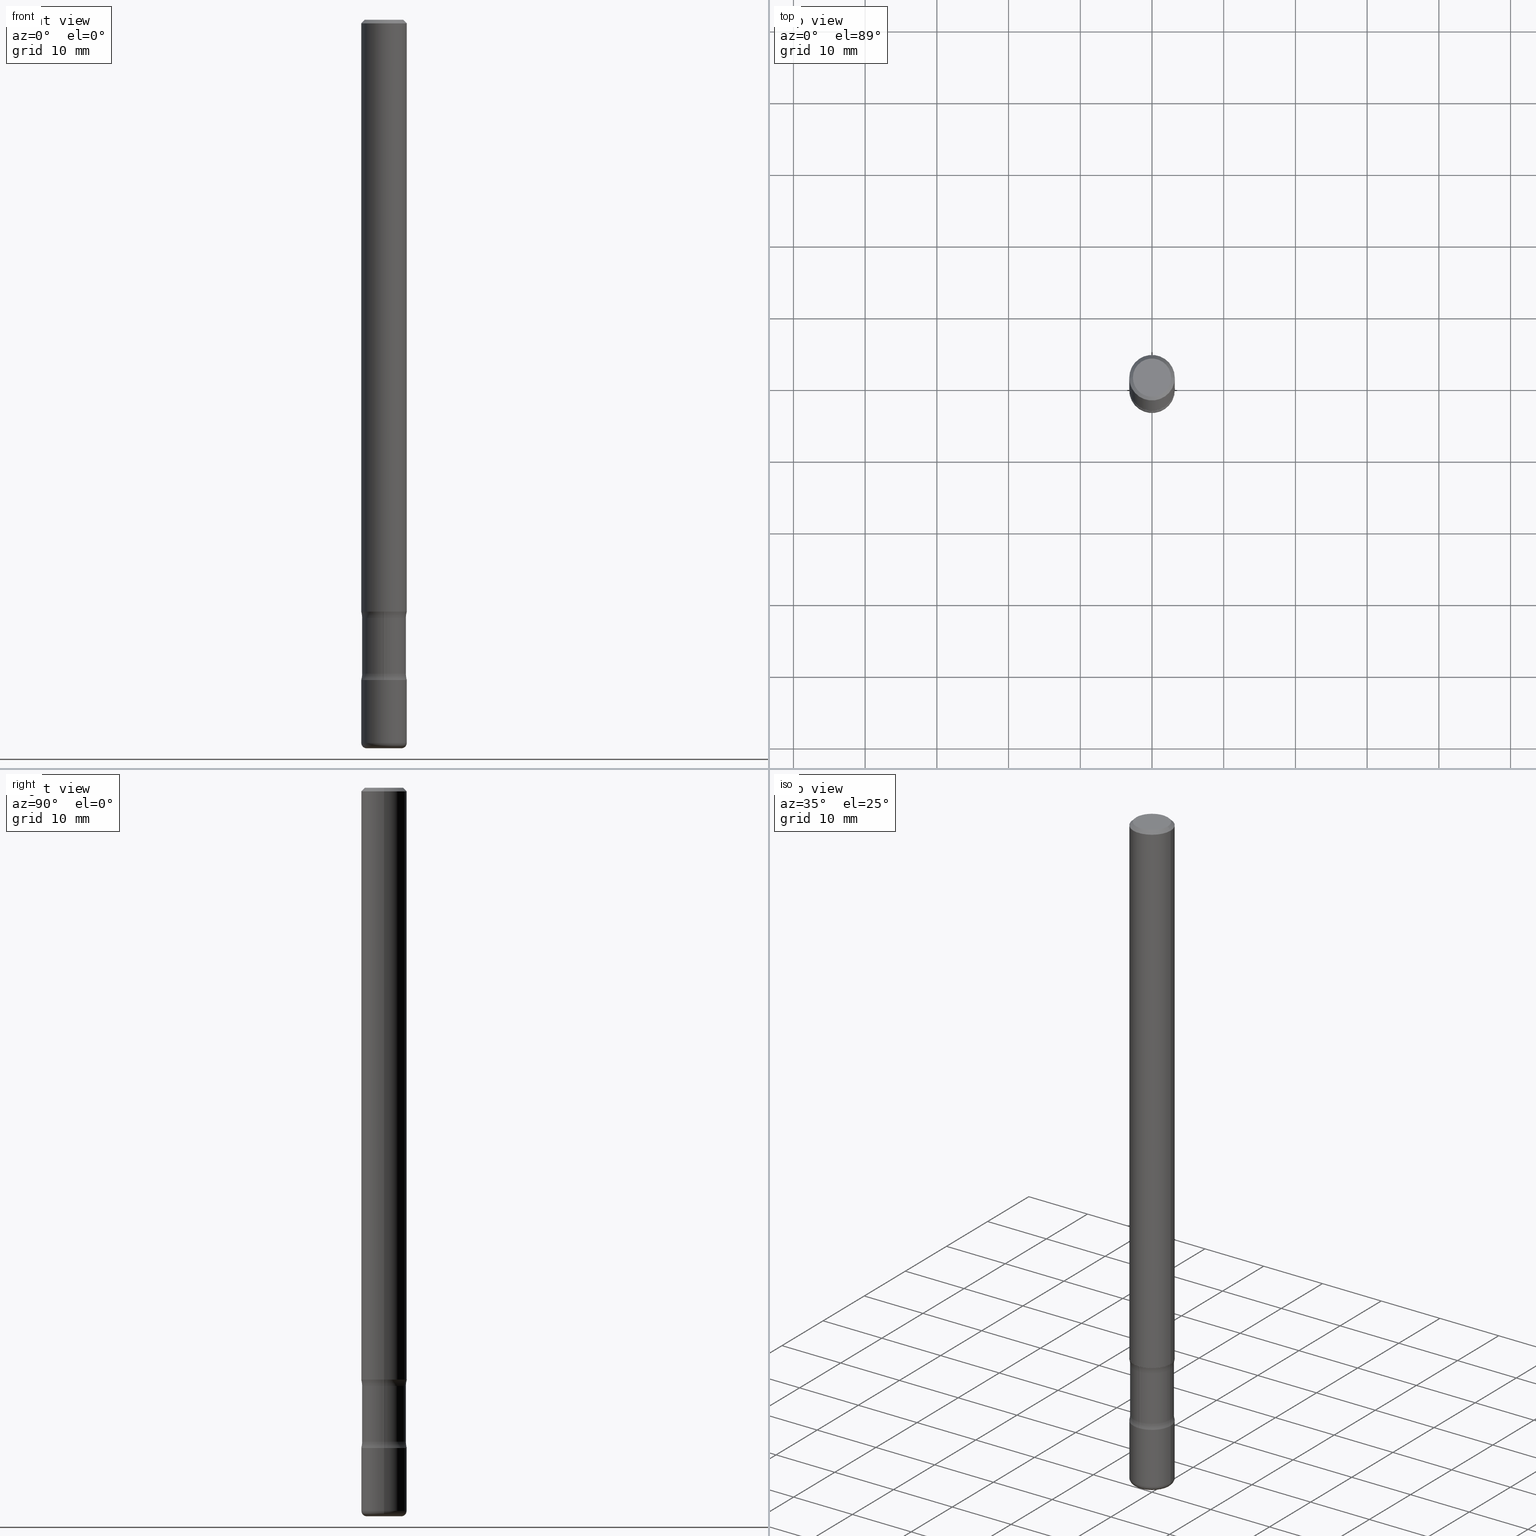
[diagram: canonical four-view strip — front | top / right | iso, engineering-drawing reading convention]
A machine part, canonical four-view strip (front | top / right | iso — engineering-drawing reading convention). The complete STEP part file that produces these views, byte-faithful:
ISO-10303-21;
HEADER;
FILE_DESCRIPTION (( 'STEP AP203' ),
    '1' );
FILE_NAME ('32754.STEP',
    '2023-03-11T07:00:12',
    ( '' ),
    ( '' ),
    'SwSTEP 2.0',
    'SolidWorks 2022',
    '' );
FILE_SCHEMA (( 'CONFIG_CONTROL_DESIGN' ));
ENDSEC;

DATA;
#1 = CARTESIAN_POINT ( 'NONE',  ( 0.1200000000000000927, -1.230747171942208294E-14, -3.284999999999999698 ) ) ;
#2 = ORIENTED_EDGE ( 'NONE', *, *, #463, .F. ) ;
#3 = CARTESIAN_POINT ( 'NONE',  ( -0.1249999999999996808, 8.030407079339180685E-16, -0.02000000000000002470 ) ) ;
#4 = CARTESIAN_POINT ( 'NONE',  ( -2.199483274483268493E-29, -2.850133821655910914E-14, -3.624999999999999556 ) ) ;
#5 = VERTEX_POINT ( 'NONE', #103 ) ;
#6 = DIRECTION ( 'NONE',  ( -2.438088387897960049E-29, 3.491481338843145188E-15, 1.000000000000000000 ) ) ;
#7 = CONICAL_SURFACE ( 'NONE', #601, 0.1249999999999996808, 0.7853981633974477239 ) ;
#8 = AXIS2_PLACEMENT_3D ( 'NONE', #503, #74, #638 ) ;
#9 = ADVANCED_FACE ( 'NONE', ( #483 ), #291, .F. ) ;
#10 = DIRECTION ( 'NONE',  ( 7.105427357601001859E-15, 1.000000000000000000, -3.491481338843145583E-15 ) ) ;
#11 = DIRECTION ( 'NONE',  ( 2.445468806185136597E-29, -3.491481338843145583E-15, -1.000000000000000000 ) ) ;
#12 = UNCERTAINTY_MEASURE_WITH_UNIT (LENGTH_MEASURE( 1.000000000000000082E-05 ), #261, 'distance_accuracy_value', 'NONE');
#13 = EDGE_LOOP ( 'NONE', ( #497, #394, #105, #78 ) ) ;
#14 = AXIS2_PLACEMENT_3D ( 'NONE', #727, #430, #363 ) ;
#15 = CIRCLE ( 'NONE', #209, 0.1250000000000000000 ) ;
#16 = CIRCLE ( 'NONE', #364, 0.1200000000000000927 ) ;
#17 = VERTEX_POINT ( 'NONE', #83 ) ;
#18 = DIRECTION ( 'NONE',  ( 1.000000000000000000, -6.982962677686261189E-15, 0.000000000000000000 ) ) ;
#19 = ORIENTED_EDGE ( 'NONE', *, *, #221, .F. ) ;
#20 = APPROVAL ( #719, 'UNSPECIFIED' ) ;
#21 = ADVANCED_FACE ( 'NONE', ( #214 ), #343, .F. ) ;
#22 = DIRECTION ( 'NONE',  ( 1.000000000000000000, -6.860497997771530774E-15, 4.840754334505379215E-29 ) ) ;
#23 = FACE_OUTER_BOUND ( 'NONE', #521, .T. ) ;
#24 = CLOSED_SHELL ( 'NONE', ( #131, #204, #679, #763, #644, #141, #357, #179 ) ) ;
#25 = AXIS2_PLACEMENT_3D ( 'NONE', #229, #289, #427 ) ;
#26 = DIRECTION ( 'NONE',  ( 2.442928833827242827E-29, -3.495118723825897803E-15, -1.000000000000000000 ) ) ;
#27 = FACE_OUTER_BOUND ( 'NONE', #174, .T. ) ;
#28 = TOROIDAL_SURFACE ( 'NONE', #397, 0.2450000000000000788, 0.1249999999999999584 ) ;
#29 = PLANE ( 'NONE',  #700 ) ;
#30 = FACE_OUTER_BOUND ( 'NONE', #411, .T. ) ;
#31 = CC_DESIGN_DATE_AND_TIME_ASSIGNMENT ( #367, #37, ( #64 ) ) ;
#32 = PERSON_AND_ORGANIZATION ( #461, #447 ) ;
#33 = DIRECTION ( 'NONE',  ( -2.445468806185136597E-29, 3.491481338843145583E-15, 1.000000000000000000 ) ) ;
#34 = DIRECTION ( 'NONE',  ( 1.000000000000000000, -6.982962677686262766E-15, 0.000000000000000000 ) ) ;
#35 = ORIENTED_EDGE ( 'NONE', *, *, #324, .F. ) ;
#36 = MANIFOLD_SOLID_BREP ( 'Body-Move/Copy2[1]', #600 ) ;
#37 = DATE_TIME_ROLE ( 'creation_date' ) ;
#38 = DIRECTION ( 'NONE',  ( -2.445468806185136877E-29, 3.491481338843145188E-15, 1.000000000000000000 ) ) ;
#39 = CARTESIAN_POINT ( 'NONE',  ( -8.232597597324865525E-16, -0.1200000000000140538, -3.997119036516930013 ) ) ;
#40 = MANIFOLD_SOLID_BREP ( 'Body-Move/Copy2[3]', #24 ) ;
#41 = CIRCLE ( 'NONE', #655, 0.1250000000000000000 ) ;
#42 = ORIENTED_EDGE ( 'NONE', *, *, #316, .F. ) ;
#43 = CIRCLE ( 'NONE', #776, 0.09499999999999998723 ) ;
#44 = CARTESIAN_POINT ( 'NONE',  ( 0.1250000000000000000, -8.728703347107833388E-16, 6.095220969744919741E-30 ) ) ;
#45 = ORIENTED_EDGE ( 'NONE', *, *, #524, .T. ) ;
#46 = PERSON_AND_ORGANIZATION_ROLE ( 'classification_officer' ) ;
#47 = CC_DESIGN_PERSON_AND_ORGANIZATION_ASSIGNMENT ( #234, #352, ( #408 ) ) ;
#48 = CARTESIAN_POINT ( 'NONE',  ( -0.1249999999999998335, 8.881784197001240490E-16, -6.148668862818623819E-30 ) ) ;
#49 = DIRECTION ( 'NONE',  ( -2.445468806185136597E-29, 3.491481338843145583E-15, 1.000000000000000000 ) ) ;
#50 = DIRECTION ( 'NONE',  ( -2.445468806185136597E-29, 3.491481338843145583E-15, 1.000000000000000000 ) ) ;
#51 = ORIENTED_EDGE ( 'NONE', *, *, #340, .F. ) ;
#52 = DIRECTION ( 'NONE',  ( 2.438088387897960049E-29, -3.491481338843145188E-15, -1.000000000000000000 ) ) ;
#53 = PLANE ( 'NONE',  #334 ) ;
#54 = ORIENTED_EDGE ( 'NONE', *, *, #276, .F. ) ;
#55 = CARTESIAN_POINT ( 'NONE',  ( -1.680822009453945353E-15, -0.2450000000000115696, -3.284999999999998366 ) ) ;
#56 = ORIENTED_EDGE ( 'NONE', *, *, #259, .T. ) ;
#57 = CARTESIAN_POINT ( 'NONE',  ( 8.379555213224503959E-16, 0.1199999999999861594, -3.997119036516931345 ) ) ;
#58 = ORIENTED_EDGE ( 'NONE', *, *, #643, .F. ) ;
#59 = AXIS2_PLACEMENT_3D ( 'NONE', #726, #241, #112 ) ;
#60 = ORIENTED_EDGE ( 'NONE', *, *, #392, .F. ) ;
#61 = AXIS2_PLACEMENT_3D ( 'NONE', #286, #542, #714 ) ;
#62 = CARTESIAN_POINT ( 'NONE',  ( 0.000000000000000000, 0.000000000000000000, 0.000000000000000000 ) ) ;
#63 = CARTESIAN_POINT ( 'NONE',  ( 0.08249999999999986511, -1.453191644018873135E-14, -3.999999999999999556 ) ) ;
#64 = PRODUCT_DEFINITION ( 'UNKNOWN', '', #408, #84 ) ;
#65 = ORIENTED_EDGE ( 'NONE', *, *, #637, .F. ) ;
#66 = EDGE_CURVE ( 'NONE', #620, #606, #549, .T. ) ;
#67 = CARTESIAN_POINT ( 'NONE',  ( -8.575622497213526984E-16, -0.1250000000000126288, -3.624999999999999112 ) ) ;
#68 = DIRECTION ( 'NONE',  ( 1.000000000000000000, -6.982962677686264344E-15, 4.883557194083112340E-29 ) ) ;
#69 = CARTESIAN_POINT ( 'NONE',  ( -8.575622497213618690E-16, -0.1250000000000113243, -3.249999999999999556 ) ) ;
#70 = VERTEX_POINT ( 'NONE', #597 ) ;
#71 = CYLINDRICAL_SURFACE ( 'NONE', #164, 0.1249999999999998335 ) ;
#72 = CARTESIAN_POINT ( 'NONE',  ( 8.779233014204640876E-29, -1.253441800644689261E-14, -3.590000000000000302 ) ) ;
#73 = CLOSED_SHELL ( 'NONE', ( #350, #736, #271, #9, #77, #756, #212, #671 ) ) ;
#74 = DIRECTION ( 'NONE',  ( -2.438088387897960049E-29, 3.491481338843145188E-15, 1.000000000000000000 ) ) ;
#75 = CIRCLE ( 'NONE', #538, 0.1250000000000000000 ) ;
#76 = AXIS2_PLACEMENT_3D ( 'NONE', #92, #603, #605 ) ;
#77 = ADVANCED_FACE ( 'NONE', ( #150 ), #658, .F. ) ;
#78 = ORIENTED_EDGE ( 'NONE', *, *, #66, .T. ) ;
#79 = TOROIDAL_SURFACE ( 'NONE', #465, 0.2450000000000000788, 0.1249999999999999584 ) ;
#80 = CIRCLE ( 'NONE', #551, 0.1250000000000000000 ) ;
#81 = CARTESIAN_POINT ( 'NONE',  ( 9.781875224740545266E-29, -1.396592535537258075E-14, -3.999999999999999556 ) ) ;
#82 = VECTOR ( 'NONE', #443, 39.37007874015748143 ) ;
#83 = CARTESIAN_POINT ( 'NONE',  ( 8.728703347108718885E-16, 0.1249999999999873296, -3.625000000000000444 ) ) ;
#84 = DESIGN_CONTEXT ( 'detailed design', #704, 'design' ) ;
#85 = EDGE_CURVE ( 'NONE', #636, #233, #98, .T. ) ;
#86 = VERTEX_POINT ( 'NONE', #777 ) ;
#87 = EDGE_CURVE ( 'NONE', #784, #730, #475, .T. ) ;
#88 = CARTESIAN_POINT ( 'NONE',  ( -0.1200000000000001205, -1.172510407857052449E-14, -3.590000000000000302 ) ) ;
#89 = DIRECTION ( 'NONE',  ( 6.982962677686265922E-15, 1.000000000000000000, -3.495118723825897803E-15 ) ) ;
#90 = EDGE_CURVE ( 'NONE', #190, #730, #798, .T. ) ;
#91 = DIRECTION ( 'NONE',  ( -2.445468806185136597E-29, 3.491481338843145583E-15, 1.000000000000000000 ) ) ;
#92 = CARTESIAN_POINT ( 'NONE',  ( 8.779233014204640876E-29, -1.253441800644689261E-14, -3.590000000000000302 ) ) ;
#93 = CARTESIAN_POINT ( 'NONE',  ( -1.043851414335219820E-46, 1.490343170380447200E-32, 4.268512490100411279E-18 ) ) ;
#94 = CARTESIAN_POINT ( 'NONE',  ( 8.779321913237167628E-29, -1.253429069797249521E-14, -3.590000000000000302 ) ) ;
#95 = AXIS2_PLACEMENT_3D ( 'NONE', #618, #494, #189 ) ;
#96 = EDGE_CURVE ( 'NONE', #636, #751, #354, .T. ) ;
#97 = CIRCLE ( 'NONE', #765, 0.1249999999999999584 ) ;
#98 = LINE ( 'NONE', #280, #699 ) ;
#99 = TOROIDAL_SURFACE ( 'NONE', #766, 0.09499999999999998723, 0.02999999999999998848 ) ;
#100 = ORIENTED_EDGE ( 'NONE', *, *, #533, .F. ) ;
#101 = DIRECTION ( 'NONE',  ( -1.000000000000000000, 6.982962677686266711E-15, 0.000000000000000000 ) ) ;
#102 = DIRECTION ( 'NONE',  ( 1.000000000000000000, -6.982962677686265922E-15, 4.876176775795935793E-29 ) ) ;
#103 = CARTESIAN_POINT ( 'NONE',  ( -0.1049999999999996630, 7.681258945454869124E-16, 4.268512490095161194E-18 ) ) ;
#104 = EDGE_CURVE ( 'NONE', #17, #451, #278, .T. ) ;
#105 = ORIENTED_EDGE ( 'NONE', *, *, #643, .T. ) ;
#106 = PERSON_AND_ORGANIZATION ( #461, #447 ) ;
#107 = DIRECTION ( 'NONE',  ( -2.445468806185136597E-29, 3.491481338843145583E-15, 1.000000000000000000 ) ) ;
#108 = DIRECTION ( 'NONE',  ( -0.9993908270190959842, 6.856857904024576981E-15, -0.03489949670249575808 ) ) ;
#109 = CARTESIAN_POINT ( 'NONE',  ( 9.781875224740545266E-29, -1.396592535537258075E-14, -3.999999999999999556 ) ) ;
#110 = EDGE_LOOP ( 'NONE', ( #423, #356 ) ) ;
#111 = COORDINATED_UNIVERSAL_TIME_OFFSET ( 5, 0, .BEHIND. ) ;
#112 = DIRECTION ( 'NONE',  ( 1.000000000000000000, -6.982962677686266711E-15, 4.883557194083112901E-29 ) ) ;
#113 = DIRECTION ( 'NONE',  ( -2.445468806185136597E-29, 3.491481338843145583E-15, 1.000000000000000000 ) ) ;
#114 = TOROIDAL_SURFACE ( 'NONE', #14, 0.2450000000000001066, 0.1250000000000000000 ) ;
#115 = AXIS2_PLACEMENT_3D ( 'NONE', #120, #439, #617 ) ;
#116 = EDGE_LOOP ( 'NONE', ( #244, #379 ) ) ;
#117 = AXIS2_PLACEMENT_3D ( 'NONE', #4, #448, #452 ) ;
#118 = CC_DESIGN_DATE_AND_TIME_ASSIGNMENT ( #472, #731, ( #135 ) ) ;
#119 = CALENDAR_DATE ( 2023, 11, 3 ) ;
#120 = CARTESIAN_POINT ( 'NONE',  ( 9.773884746344342792E-29, -1.395722006532878067E-14, -3.997119036516930457 ) ) ;
#121 = CARTESIAN_POINT ( 'NONE',  ( 8.034228618919856078E-29, -1.146827948720559706E-14, -3.284999999999999698 ) ) ;
#122 = DIRECTION ( 'NONE',  ( 2.442928833827243107E-29, -3.495118723825897803E-15, -1.000000000000000000 ) ) ;
#123 = ORIENTED_EDGE ( 'NONE', *, *, #288, .F. ) ;
#124 = EDGE_LOOP ( 'NONE', ( #123, #257, #385, #459 ) ) ;
#125 = ORIENTED_EDGE ( 'NONE', *, *, #612, .F. ) ;
#126 = DIRECTION ( 'NONE',  ( -2.445468806185136877E-29, 3.491481338843145188E-15, 1.000000000000000000 ) ) ;
#127 = ORIENTED_EDGE ( 'NONE', *, *, #781, .F. ) ;
#128 = ORIENTED_EDGE ( 'NONE', *, *, #623, .T. ) ;
#129 = CARTESIAN_POINT ( 'NONE',  ( 7.947773620101693940E-29, -1.134731435124022443E-14, -3.250000000000000000 ) ) ;
#130 = EDGE_CURVE ( 'NONE', #724, #649, #198, .T. ) ;
#131 = ADVANCED_FACE ( 'NONE', ( #609 ), #577, .T. ) ;
#132 = CLOSED_SHELL ( 'NONE', ( #445, #757, #410, #368, #482, #559 ) ) ;
#133 = CIRCLE ( 'NONE', #592, 0.1250000000000000000 ) ;
#134 = ORIENTED_EDGE ( 'NONE', *, *, #213, .F. ) ;
#135 = SECURITY_CLASSIFICATION ( '', '', #302 ) ;
#136 = DIRECTION ( 'NONE',  ( 7.105427357601001859E-15, 1.000000000000000000, -3.491481338843145583E-15 ) ) ;
#137 = EDGE_CURVE ( 'NONE', #307, #606, #260, .T. ) ;
#138 = DIRECTION ( 'NONE',  ( 6.982962677686265922E-15, 1.000000000000000000, -4.553079989440434359E-15 ) ) ;
#139 = ORIENTED_EDGE ( 'NONE', *, *, #335, .T. ) ;
#140 = ORIENTED_EDGE ( 'NONE', *, *, #768, .T. ) ;
#141 = ADVANCED_FACE ( 'NONE', ( #572 ), #53, .T. ) ;
#142 = FACE_OUTER_BOUND ( 'NONE', #580, .T. ) ;
#143 = AXIS2_PLACEMENT_3D ( 'NONE', #667, #52, #621 ) ;
#144 = DIRECTION ( 'NONE',  ( -6.982962677686265922E-15, -1.000000000000000000, 0.000000000000000000 ) ) ;
#145 = TOROIDAL_SURFACE ( 'NONE', #149, 0.2450000000000000788, 0.1249999999999999584 ) ;
#146 = EDGE_CURVE ( 'NONE', #504, #804, #568, .T. ) ;
#147 = VECTOR ( 'NONE', #242, 39.37007874015748143 ) ;
#148 = CIRCLE ( 'NONE', #613, 0.1200000000000000927 ) ;
#149 = AXIS2_PLACEMENT_3D ( 'NONE', #774, #158, #349 ) ;
#150 = FACE_OUTER_BOUND ( 'NONE', #169, .T. ) ;
#151 = EDGE_CURVE ( 'NONE', #495, #192, #377, .T. ) ;
#152 = DIRECTION ( 'NONE',  ( 1.000000000000000000, -6.982962677686267499E-15, 4.876206205277409723E-29 ) ) ;
#153 = DIRECTION ( 'NONE',  ( -6.982962677686266711E-15, -1.000000000000000000, 3.491481338843145583E-15 ) ) ;
#154 = EDGE_CURVE ( 'NONE', #266, #86, #489, .T. ) ;
#155 = DIRECTION ( 'NONE',  ( 1.000000000000000000, 0.000000000000000000, 0.000000000000000000 ) ) ;
#156 = DIRECTION ( 'NONE',  ( 2.442928833827243107E-29, -3.495118723825897803E-15, -1.000000000000000000 ) ) ;
#157 = DIRECTION ( 'NONE',  ( 6.982962677686265922E-15, 1.000000000000000000, -3.495118723825897409E-15 ) ) ;
#158 = DIRECTION ( 'NONE',  ( -2.445468806185136597E-29, 3.491481338843145583E-15, 1.000000000000000000 ) ) ;
#159 = PRODUCT_RELATED_PRODUCT_CATEGORY ( 'detail', '', ( #300 ) ) ;
#160 = DATE_AND_TIME ( #240, #539 ) ;
#161 = DIRECTION ( 'NONE',  ( 2.442928833827243107E-29, -3.495118723825897803E-15, -1.000000000000000000 ) ) ;
#162 = DIRECTION ( 'NONE',  ( -2.445468806185136597E-29, 3.491481338843145583E-15, 1.000000000000000000 ) ) ;
#163 = AXIS2_PLACEMENT_3D ( 'NONE', #373, #661, #376 ) ;
#164 = AXIS2_PLACEMENT_3D ( 'NONE', #62, #688, #442 ) ;
#165 = ORIENTED_EDGE ( 'NONE', *, *, #85, .F. ) ;
#166 = CARTESIAN_POINT ( 'NONE',  ( 8.033365028318173227E-29, -1.146951619809973125E-14, -3.284999999999999698 ) ) ;
#167 = CC_DESIGN_APPROVAL ( #20, ( #64 ) ) ;
#168 = ORIENTED_EDGE ( 'NONE', *, *, #583, .T. ) ;
#169 = EDGE_LOOP ( 'NONE', ( #642, #770 ) ) ;
#170 = COORDINATED_UNIVERSAL_TIME_OFFSET ( 5, 0, .BEHIND. ) ;
#171 = CARTESIAN_POINT ( 'NONE',  ( 7.948726109735903543E-29, -1.134595033187169126E-14, -3.250000000000000000 ) ) ;
#172 = DIRECTION ( 'NONE',  ( -1.000000000000000000, 6.982962677686265922E-15, -4.876176775795935793E-29 ) ) ;
#173 = DIRECTION ( 'NONE',  ( -2.445468806185136597E-29, 3.491481338843145583E-15, 1.000000000000000000 ) ) ;
#174 = EDGE_LOOP ( 'NONE', ( #787, #548, #412, #125 ) ) ;
#175 = SHAPE_DEFINITION_REPRESENTATION ( #239, #185 ) ;
#176 = FACE_OUTER_BOUND ( 'NONE', #492, .T. ) ;
#177 = DIRECTION ( 'NONE',  ( 2.442928833827243107E-29, -3.495118723825897803E-15, -1.000000000000000000 ) ) ;
#178 = CARTESIAN_POINT ( 'NONE',  ( 8.779233014204640876E-29, -1.253441800644689261E-14, -3.590000000000000302 ) ) ;
#179 = ADVANCED_FACE ( 'NONE', ( #790 ), #293, .T. ) ;
#180 = EDGE_LOOP ( 'NONE', ( #35, #507, #383, #611 ) ) ;
#181 = CARTESIAN_POINT ( 'NONE',  ( -0.1249999999999999861, -1.176844143360627736E-14, -3.624999999999999556 ) ) ;
#182 = AXIS2_PLACEMENT_3D ( 'NONE', #769, #22, #540 ) ;
#183 = CC_DESIGN_APPROVAL ( #694, ( #408 ) ) ;
#184 = ORIENTED_EDGE ( 'NONE', *, *, #332, .F. ) ;
#185 = ADVANCED_BREP_SHAPE_REPRESENTATION ( '32754', ( #36, #319, #40, #590, #530 ), #602 ) ;
#186 = ORIENTED_EDGE ( 'NONE', *, *, #390, .T. ) ;
#187 = LINE ( 'NONE', #450, #499 ) ;
#188 = CARTESIAN_POINT ( 'NONE',  ( -0.1250000000000000000, -1.297300249550716373E-14, -3.970000000000000195 ) ) ;
#189 = DIRECTION ( 'NONE',  ( 1.000000000000000000, -6.982962677686261977E-15, 0.000000000000000000 ) ) ;
#190 = VERTEX_POINT ( 'NONE', #298 ) ;
#191 = CARTESIAN_POINT ( 'NONE',  ( 9.773884746344342792E-29, -1.395722006532878067E-14, -3.997119036516930457 ) ) ;
#192 = VERTEX_POINT ( 'NONE', #181 ) ;
#193 = EDGE_CURVE ( 'NONE', #800, #659, #309, .T. ) ;
#194 = CARTESIAN_POINT ( 'NONE',  ( 8.864824422421120163E-29, -1.265661985330640259E-14, -3.624999999999999556 ) ) ;
#195 = DIRECTION ( 'NONE',  ( 2.442928833827242827E-29, -3.495118723825897803E-15, -1.000000000000000000 ) ) ;
#196 = DIRECTION ( 'NONE',  ( 2.442928833827243107E-29, -3.495118723825897803E-15, -1.000000000000000000 ) ) ;
#197 = EDGE_LOOP ( 'NONE', ( #60, #333, #366, #58 ) ) ;
#198 = CIRCLE ( 'NONE', #231, 0.1250000000000000000 ) ;
#199 = CIRCLE ( 'NONE', #292, 0.08250000000000000389 ) ;
#200 = FACE_OUTER_BOUND ( 'NONE', #471, .T. ) ;
#201 = ORIENTED_EDGE ( 'NONE', *, *, #709, .T. ) ;
#202 = LOCAL_TIME ( 2, 0, 12.00000000000000000, #401 ) ;
#203 = ORIENTED_EDGE ( 'NONE', *, *, #779, .F. ) ;
#204 = ADVANCED_FACE ( 'NONE', ( #676 ), #114, .F. ) ;
#205 = EDGE_LOOP ( 'NONE', ( #531, #792, #140, #793 ) ) ;
#206 = PLANE ( 'NONE',  #117 ) ;
#207 = CARTESIAN_POINT ( 'NONE',  ( 1.710825856033216084E-15, 0.2449999999999886158, -3.285000000000000586 ) ) ;
#208 = VERTEX_POINT ( 'NONE', #741 ) ;
#209 = AXIS2_PLACEMENT_3D ( 'NONE', #194, #674, #372 ) ;
#210 = LOCAL_TIME ( 2, 0, 12.00000000000000000, #170 ) ;
#211 = DIRECTION ( 'NONE',  ( 1.000000000000000000, -6.982962677686264344E-15, 4.883557194083112340E-29 ) ) ;
#212 = ADVANCED_FACE ( 'NONE', ( #747 ), #752, .F. ) ;
#213 = EDGE_CURVE ( 'NONE', #724, #730, #560, .T. ) ;
#214 = FACE_OUTER_BOUND ( 'NONE', #805, .T. ) ;
#215 = VECTOR ( 'NONE', #195, 39.37007874015748143 ) ;
#216 = AXIS2_PLACEMENT_3D ( 'NONE', #420, #802, #488 ) ;
#217 = DIRECTION ( 'NONE',  ( -2.445468806185136597E-29, 3.491481338843145583E-15, 1.000000000000000000 ) ) ;
#218 = AXIS2_PLACEMENT_3D ( 'NONE', #435, #297, #353 ) ;
#219 = CARTESIAN_POINT ( 'NONE',  ( 7.947773620101693940E-29, -1.134731435124022443E-14, -3.250000000000000000 ) ) ;
#220 = CARTESIAN_POINT ( 'NONE',  ( 8.779321913237167628E-29, -1.253429069797249521E-14, -3.590000000000000302 ) ) ;
#221 = EDGE_CURVE ( 'NONE', #381, #620, #622, .T. ) ;
#222 = APPROVAL_ROLE ( '' ) ;
#223 = DIRECTION ( 'NONE',  ( -2.445468806185136597E-29, 3.491481338843145583E-15, 1.000000000000000000 ) ) ;
#224 = CARTESIAN_POINT ( 'NONE',  ( 1.060531293745186782E-27, -1.514157617551786646E-13, -43.36719777667440923 ) ) ;
#225 = PERSON_AND_ORGANIZATION ( #461, #447 ) ;
#226 = DIRECTION ( 'NONE',  ( 7.105427357601001859E-15, 1.000000000000000000, -3.491481338843145583E-15 ) ) ;
#227 = CARTESIAN_POINT ( 'NONE',  ( -2.199483274483268493E-29, -2.850133821655910914E-14, -3.624999999999999556 ) ) ;
#228 = APPROVAL_DATE_TIME ( #160, #694 ) ;
#229 = CARTESIAN_POINT ( 'NONE',  ( 0.2450000000000001066, -1.424524386248003079E-14, -3.590000000000000302 ) ) ;
#230 = CARTESIAN_POINT ( 'NONE',  ( 0.1249999999999999861, -1.222018468595100619E-14, -3.250000000000000000 ) ) ;
#231 = AXIS2_PLACEMENT_3D ( 'NONE', #129, #50, #512 ) ;
#232 = AXIS2_PLACEMENT_3D ( 'NONE', #348, #720, #541 ) ;
#233 = VERTEX_POINT ( 'NONE', #63 ) ;
#234 = PERSON_AND_ORGANIZATION ( #461, #447 ) ;
#235 = LINE ( 'NONE', #48, #570 ) ;
#236 = CYLINDRICAL_SURFACE ( 'NONE', #216, 0.1249999999999998335 ) ;
#237 = DIRECTION ( 'NONE',  ( -2.442928833827242827E-29, 3.495118723825897803E-15, 1.000000000000000000 ) ) ;
#238 = VERTEX_POINT ( 'NONE', #516 ) ;
#239 = PRODUCT_DEFINITION_SHAPE ( 'NONE', 'NONE',  #64 ) ;
#240 = CALENDAR_DATE ( 2023, 11, 3 ) ;
#241 = DIRECTION ( 'NONE',  ( -2.445468806185136597E-29, 3.491481338843145583E-15, 1.000000000000000000 ) ) ;
#242 = DIRECTION ( 'NONE',  ( -2.445468806185136877E-29, 3.491481338843145188E-15, 1.000000000000000000 ) ) ;
#243 = EDGE_CURVE ( 'NONE', #238, #556, #764, .T. ) ;
#244 = ORIENTED_EDGE ( 'NONE', *, *, #791, .T. ) ;
#245 = ORIENTED_EDGE ( 'NONE', *, *, #598, .T. ) ;
#246 = DIRECTION ( 'NONE',  ( 1.000000000000000000, -6.982962677686262766E-15, 0.000000000000000000 ) ) ;
#247 = AXIS2_PLACEMENT_3D ( 'NONE', #740, #107, #296 ) ;
#248 = APPROVAL_PERSON_ORGANIZATION ( #426, #20, #486 ) ;
#249 = ORIENTED_EDGE ( 'NONE', *, *, #623, .F. ) ;
#250 = EDGE_CURVE ( 'NONE', #730, #190, #782, .T. ) ;
#251 = EDGE_LOOP ( 'NONE', ( #449, #745, #738, #134 ) ) ;
#252 = LINE ( 'NONE', #627, #799 ) ;
#253 = DIRECTION ( 'NONE',  ( 2.442928833827243107E-29, -3.495118723825897803E-15, -1.000000000000000000 ) ) ;
#254 = CARTESIAN_POINT ( 'NONE',  ( 7.947773620101693940E-29, -1.134731435124022443E-14, -3.250000000000000000 ) ) ;
#255 = EDGE_LOOP ( 'NONE', ( #509, #42 ) ) ;
#256 = CARTESIAN_POINT ( 'NONE',  ( 8.034228618919856078E-29, -1.146827948720559706E-14, -3.284999999999999698 ) ) ;
#257 = ORIENTED_EDGE ( 'NONE', *, *, #146, .F. ) ;
#258 = CARTESIAN_POINT ( 'NONE',  ( 8.864824422421120163E-29, -1.265661985330640259E-14, -3.624999999999999556 ) ) ;
#259 = EDGE_CURVE ( 'NONE', #266, #502, #640, .T. ) ;
#260 = LINE ( 'NONE', #39, #404 ) ;
#261 =( CONVERSION_BASED_UNIT ( 'INCH', #506 ) LENGTH_UNIT ( ) NAMED_UNIT ( #393 ) );
#262 = EDGE_LOOP ( 'NONE', ( #616, #400, #561, #550 ) ) ;
#263 = CARTESIAN_POINT ( 'NONE',  ( -8.404110047269245559E-16, -0.1200000000000126521, -3.589999999999999858 ) ) ;
#264 = ADVANCED_FACE ( 'NONE', ( #455 ), #326, .F. ) ;
#265 = CARTESIAN_POINT ( 'NONE',  ( 9.764677346546979557E-29, -1.397040558589125639E-14, -3.997119036516930457 ) ) ;
#266 = VERTEX_POINT ( 'NONE', #88 ) ;
#267 = AXIS2_PLACEMENT_3D ( 'NONE', #630, #758, #635 ) ;
#268 = FACE_OUTER_BOUND ( 'NONE', #566, .T. ) ;
#269 = DIRECTION ( 'NONE',  ( -6.982962677686266711E-15, -1.000000000000000000, 3.491481338843145583E-15 ) ) ;
#270 = CARTESIAN_POINT ( 'NONE',  ( 9.708511160554992872E-29, -1.386118091520728738E-14, -3.970000000000000195 ) ) ;
#271 = ADVANCED_FACE ( 'NONE', ( #274 ), #79, .F. ) ;
#272 = AXIS2_PLACEMENT_3D ( 'NONE', #498, #303, #794 ) ;
#273 = FACE_OUTER_BOUND ( 'NONE', #197, .T. ) ;
#274 = FACE_OUTER_BOUND ( 'NONE', #513, .T. ) ;
#275 = CARTESIAN_POINT ( 'NONE',  ( 7.947773620101693940E-29, -1.134731435124022443E-14, -3.250000000000000000 ) ) ;
#276 = EDGE_CURVE ( 'NONE', #5, #784, #425, .T. ) ;
#277 = DIRECTION ( 'NONE',  ( 2.442928833827243107E-29, -3.495118723825897803E-15, -1.000000000000000000 ) ) ;
#278 = CIRCLE ( 'NONE', #444, 0.1250000000000000000 ) ;
#279 = TOROIDAL_SURFACE ( 'NONE', #310, 0.09499999999999998723, 0.02999999999999998848 ) ;
#280 = CARTESIAN_POINT ( 'NONE',  ( 1.453906075779746502E-17, -1.395586652513355726E-14, -3.997119036516930457 ) ) ;
#281 = APPROVAL_ROLE ( '' ) ;
#282 = DIRECTION ( 'NONE',  ( 2.442928833827243107E-29, -3.495118723825897803E-15, -1.000000000000000000 ) ) ;
#283 = PLANE ( 'NONE',  #593 ) ;
#284 = APPLICATION_PROTOCOL_DEFINITION ( 'international standard', 'config_control_design', 1994, #704 ) ;
#285 = DIRECTION ( 'NONE',  ( 1.000000000000000000, -6.982962677686262766E-15, 0.000000000000000000 ) ) ;
#286 = CARTESIAN_POINT ( 'NONE',  ( 4.890937612370279289E-31, -6.982962677686299005E-17, -0.02000000000000002470 ) ) ;
#287 = ORIENTED_EDGE ( 'NONE', *, *, #193, .T. ) ;
#288 = EDGE_CURVE ( 'NONE', #804, #86, #387, .T. ) ;
#289 = DIRECTION ( 'NONE',  ( -6.982962677686266711E-15, -1.000000000000000000, 3.491481338843145583E-15 ) ) ;
#290 = FACE_OUTER_BOUND ( 'NONE', #180, .T. ) ;
#291 = TOROIDAL_SURFACE ( 'NONE', #517, 0.2450000000000000788, 0.1249999999999999584 ) ;
#292 = AXIS2_PLACEMENT_3D ( 'NONE', #81, #653, #478 ) ;
#293 = CYLINDRICAL_SURFACE ( 'NONE', #480, 0.1200000000000001066 ) ;
#294 = ORIENTED_EDGE ( 'NONE', *, *, #390, .F. ) ;
#295 = PERSON_AND_ORGANIZATION ( #461, #447 ) ;
#296 = DIRECTION ( 'NONE',  ( 1.000000000000000000, -6.982962677686262766E-15, 0.000000000000000000 ) ) ;
#297 = DIRECTION ( 'NONE',  ( -2.445468806185136597E-29, 3.491481338843145583E-15, 1.000000000000000000 ) ) ;
#298 = CARTESIAN_POINT ( 'NONE',  ( -0.1249999999999996808, 8.030407079339180685E-16, -0.02000000000000002470 ) ) ;
#299 = ORIENTED_EDGE ( 'NONE', *, *, #392, .T. ) ;
#300 = PRODUCT ( '32754', '32754', '', ( #778 ) ) ;
#301 = ORIENTED_EDGE ( 'NONE', *, *, #583, .F. ) ;
#302 = SECURITY_CLASSIFICATION_LEVEL ( 'unclassified' ) ;
#303 = DIRECTION ( 'NONE',  ( -2.445468806185136597E-29, 3.491481338843145583E-15, 1.000000000000000000 ) ) ;
#304 = DIRECTION ( 'NONE',  ( 6.982962677686265922E-15, 1.000000000000000000, -4.370956789862821150E-15 ) ) ;
#305 = EDGE_CURVE ( 'NONE', #451, #606, #690, .T. ) ;
#306 = ORIENTED_EDGE ( 'NONE', *, *, #332, .T. ) ;
#307 = VERTEX_POINT ( 'NONE', #746 ) ;
#308 = CARTESIAN_POINT ( 'NONE',  ( -1.453906075760196926E-17, -1.395586652513355726E-14, -3.997119036516930457 ) ) ;
#309 = CIRCLE ( 'NONE', #584, 0.1250000000000000000 ) ;
#310 = AXIS2_PLACEMENT_3D ( 'NONE', #689, #633, #68 ) ;
#311 = EDGE_LOOP ( 'NONE', ( #797, #65, #433, #287 ) ) ;
#312 = ORIENTED_EDGE ( 'NONE', *, *, #96, .F. ) ;
#313 = CYLINDRICAL_SURFACE ( 'NONE', #218, 0.1250000000000000000 ) ;
#314 = CARTESIAN_POINT ( 'NONE',  ( 4.890937612370279289E-31, -6.982962677686299005E-17, -0.02000000000000002470 ) ) ;
#315 = ORIENTED_EDGE ( 'NONE', *, *, #768, .F. ) ;
#316 = EDGE_CURVE ( 'NONE', #649, #724, #708, .T. ) ;
#317 = FACE_BOUND ( 'NONE', #116, .T. ) ;
#318 = LINE ( 'NONE', #3, #82 ) ;
#319 = MANIFOLD_SOLID_BREP ( 'Body-Move/Copy2[2]', #132 ) ;
#320 = FACE_OUTER_BOUND ( 'NONE', #693, .T. ) ;
#321 = ORIENTED_EDGE ( 'NONE', *, *, #663, .T. ) ;
#322 = EDGE_CURVE ( 'NONE', #70, #556, #672, .T. ) ;
#323 = CARTESIAN_POINT ( 'NONE',  ( 9.781875224740546387E-29, -1.396592535537258233E-14, -4.000000000000000000 ) ) ;
#324 = EDGE_CURVE ( 'NONE', #649, #190, #235, .T. ) ;
#325 = DIRECTION ( 'NONE',  ( -2.445468806185136597E-29, 3.491481338843145583E-15, 1.000000000000000000 ) ) ;
#326 = CONICAL_SURFACE ( 'NONE', #772, 1127.411546571649069, 1.535889741755015248 ) ;
#327 = CIRCLE ( 'NONE', #773, 0.1200000000000000927 ) ;
#328 = CONICAL_SURFACE ( 'NONE', #61, 0.1249999999999996808, 0.7853981633974477239 ) ;
#329 = CARTESIAN_POINT ( 'NONE',  ( -0.2450000000000001066, -1.079358830383464797E-14, -3.590000000000000302 ) ) ;
#330 = CIRCLE ( 'NONE', #571, 0.1200000000000000927 ) ;
#331 = DIRECTION ( 'NONE',  ( 1.000000000000000000, -6.982962677686266711E-15, 0.000000000000000000 ) ) ;
#332 = EDGE_CURVE ( 'NONE', #556, #208, #252, .T. ) ;
#333 = ORIENTED_EDGE ( 'NONE', *, *, #305, .T. ) ;
#334 = AXIS2_PLACEMENT_3D ( 'NONE', #806, #803, #172 ) ;
#335 = EDGE_CURVE ( 'NONE', #502, #495, #405, .T. ) ;
#336 = CIRCLE ( 'NONE', #446, 0.09499999999999998723 ) ;
#337 = CIRCLE ( 'NONE', #648, 0.1200000000000001205 ) ;
#338 = CC_DESIGN_PERSON_AND_ORGANIZATION_ASSIGNMENT ( #32, #608, ( #300 ) ) ;
#339 = DIRECTION ( 'NONE',  ( 0.9993908270190959842, -6.978169709227524922E-15, -0.03489949670249575808 ) ) ;
#340 = EDGE_CURVE ( 'NONE', #208, #365, #15, .T. ) ;
#341 = DIRECTION ( 'NONE',  ( 6.982962677686265922E-15, 1.000000000000000000, -4.553079989440434359E-15 ) ) ;
#342 = DIRECTION ( 'NONE',  ( -6.982962677686265922E-15, -1.000000000000000000, 3.495118723825897803E-15 ) ) ;
#343 = CONICAL_SURFACE ( 'NONE', #645, 1127.411546571649069, 1.535889741755015248 ) ;
#344 = TOROIDAL_SURFACE ( 'NONE', #59, 0.2450000000000001066, 0.1250000000000000000 ) ;
#345 = AXIS2_PLACEMENT_3D ( 'NONE', #55, #466, #596 ) ;
#346 = DIRECTION ( 'NONE',  ( 2.442928833827243107E-29, -3.495118723825897803E-15, -1.000000000000000000 ) ) ;
#347 = CARTESIAN_POINT ( 'NONE',  ( 0.000000000000000000, 0.000000000000000000, 0.000000000000000000 ) ) ;
#348 = CARTESIAN_POINT ( 'NONE',  ( 0.000000000000000000, 0.000000000000000000, 0.000000000000000000 ) ) ;
#349 = DIRECTION ( 'NONE',  ( 1.000000000000000000, -6.982962677686264344E-15, 4.883557194083112340E-29 ) ) ;
#350 = ADVANCED_FACE ( 'NONE', ( #564 ), #369, .T. ) ;
#351 = ORIENTED_EDGE ( 'NONE', *, *, #663, .F. ) ;
#352 = PERSON_AND_ORGANIZATION_ROLE ( 'creator' ) ;
#353 = DIRECTION ( 'NONE',  ( 1.000000000000000000, -6.982962677686266711E-15, 4.876176775795935793E-29 ) ) ;
#354 = LINE ( 'NONE', #308, #456 ) ;
#355 = CARTESIAN_POINT ( 'NONE',  ( 9.781875224740546387E-29, -1.396592535537258233E-14, -4.000000000000000000 ) ) ;
#356 = ORIENTED_EDGE ( 'NONE', *, *, #575, .F. ) ;
#357 = ADVANCED_FACE ( 'NONE', ( #684 ), #344, .F. ) ;
#358 = APPROVAL_STATUS ( 'not_yet_approved' ) ;
#359 = CARTESIAN_POINT ( 'NONE',  ( 8.379555213224328438E-16, 0.1199999999999886158, -3.285000000000000142 ) ) ;
#360 = AXIS2_PLACEMENT_3D ( 'NONE', #382, #691, #331 ) ;
#361 = ORIENTED_EDGE ( 'NONE', *, *, #384, .T. ) ;
#362 = AXIS2_PLACEMENT_3D ( 'NONE', #94, #346, #409 ) ;
#363 = DIRECTION ( 'NONE',  ( 1.000000000000000000, -6.982962677686266711E-15, 4.883557194083112901E-29 ) ) ;
#364 = AXIS2_PLACEMENT_3D ( 'NONE', #256, #196, #520 ) ;
#365 = VERTEX_POINT ( 'NONE', #481 ) ;
#366 = ORIENTED_EDGE ( 'NONE', *, *, #533, .T. ) ;
#367 = DATE_AND_TIME ( #119, #388 ) ;
#368 = ADVANCED_FACE ( 'NONE', ( #176 ), #419, .F. ) ;
#369 = CYLINDRICAL_SURFACE ( 'NONE', #115, 0.1200000000000001066 ) ;
#370 = ORIENTED_EDGE ( 'NONE', *, *, #612, .T. ) ;
#371 = ORIENTED_EDGE ( 'NONE', *, *, #259, .F. ) ;
#372 = DIRECTION ( 'NONE',  ( 1.000000000000000000, -6.982962677686262766E-15, 0.000000000000000000 ) ) ;
#373 = CARTESIAN_POINT ( 'NONE',  ( 8.864824422421120163E-29, -1.265661985330640259E-14, -3.624999999999999556 ) ) ;
#374 = ORIENTED_EDGE ( 'NONE', *, *, #335, .F. ) ;
#375 = ORIENTED_EDGE ( 'NONE', *, *, #154, .F. ) ;
#376 = DIRECTION ( 'NONE',  ( 1.000000000000000000, -6.982962677686262766E-15, 0.000000000000000000 ) ) ;
#377 = CIRCLE ( 'NONE', #163, 0.1250000000000000000 ) ;
#378 = AXIS2_PLACEMENT_3D ( 'NONE', #749, #269, #526 ) ;
#379 = ORIENTED_EDGE ( 'NONE', *, *, #511, .T. ) ;
#380 = FACE_OUTER_BOUND ( 'NONE', #262, .T. ) ;
#381 = VERTEX_POINT ( 'NONE', #359 ) ;
#382 = CARTESIAN_POINT ( 'NONE',  ( 4.890937612370279289E-31, -6.982962677686299005E-17, -0.02000000000000002470 ) ) ;
#383 = ORIENTED_EDGE ( 'NONE', *, *, #213, .T. ) ;
#384 = EDGE_CURVE ( 'NONE', #784, #5, #457, .T. ) ;
#385 = ORIENTED_EDGE ( 'NONE', *, *, #464, .T. ) ;
#386 = AXIS2_PLACEMENT_3D ( 'NONE', #220, #277, #341 ) ;
#387 = CIRCLE ( 'NONE', #647, 0.1249999999999999306 ) ;
#388 = LOCAL_TIME ( 2, 0, 12.00000000000000000, #111 ) ;
#389 = CYLINDRICAL_SURFACE ( 'NONE', #710, 0.1200000000000001066 ) ;
#390 = EDGE_CURVE ( 'NONE', #502, #682, #187, .T. ) ;
#391 = EDGE_LOOP ( 'NONE', ( #759, #532, #706, #294 ) ) ;
#392 = EDGE_CURVE ( 'NONE', #451, #17, #41, .T. ) ;
#393 = DIMENSIONAL_EXPONENTS ( 1.000000000000000000, 0.000000000000000000, 0.000000000000000000, 0.000000000000000000, 0.000000000000000000, 0.000000000000000000, 0.000000000000000000 ) ;
#394 = ORIENTED_EDGE ( 'NONE', *, *, #104, .F. ) ;
#395 = AXIS2_PLACEMENT_3D ( 'NONE', #72, #325, #588 ) ;
#396 = AXIS2_PLACEMENT_3D ( 'NONE', #595, #162, #18 ) ;
#397 = AXIS2_PLACEMENT_3D ( 'NONE', #750, #525, #760 ) ;
#398 = CARTESIAN_POINT ( 'NONE',  ( 7.947773620101693940E-29, -1.134731435124022443E-14, -3.250000000000000000 ) ) ;
#399 = VERTEX_POINT ( 'NONE', #528 ) ;
#400 = ORIENTED_EDGE ( 'NONE', *, *, #243, .T. ) ;
#401 = COORDINATED_UNIVERSAL_TIME_OFFSET ( 5, 0, .BEHIND. ) ;
#402 = DIRECTION ( 'NONE',  ( 2.445468806185136597E-29, -3.491481338843145583E-15, -1.000000000000000000 ) ) ;
#403 = DIRECTION ( 'NONE',  ( 6.982962677686265922E-15, 1.000000000000000000, -4.370956789862821150E-15 ) ) ;
#404 = VECTOR ( 'NONE', #421, 39.37007874015748143 ) ;
#405 = CIRCLE ( 'NONE', #25, 0.1250000000000000278 ) ;
#406 = DATE_AND_TIME ( #673, #801 ) ;
#407 = DIRECTION ( 'NONE',  ( 6.982962677686265922E-15, 1.000000000000000000, -3.495118723825897409E-15 ) ) ;
#408 = PRODUCT_DEFINITION_FORMATION_WITH_SPECIFIED_SOURCE ( 'ANY', '', #300, .NOT_KNOWN. ) ;
#409 = DIRECTION ( 'NONE',  ( 6.982962677686265922E-15, 1.000000000000000000, -4.553079989440434359E-15 ) ) ;
#410 = ADVANCED_FACE ( 'NONE', ( #142 ), #7, .T. ) ;
#411 = EDGE_LOOP ( 'NONE', ( #687, #299 ) ) ;
#412 = ORIENTED_EDGE ( 'NONE', *, *, #250, .T. ) ;
#413 = CALENDAR_DATE ( 2023, 11, 3 ) ;
#414 = CARTESIAN_POINT ( 'NONE',  ( 7.947773620101693940E-29, -1.134731435124022443E-14, -3.250000000000000000 ) ) ;
#415 = DIRECTION ( 'NONE',  ( 1.000000000000000000, -6.982962677686261977E-15, 0.000000000000000000 ) ) ;
#416 = EDGE_CURVE ( 'NONE', #399, #70, #467, .T. ) ;
#417 = EDGE_LOOP ( 'NONE', ( #375, #56, #186, #315 ) ) ;
#418 = PERSON_AND_ORGANIZATION ( #461, #447 ) ;
#419 = PLANE ( 'NONE',  #143 ) ;
#420 = CARTESIAN_POINT ( 'NONE',  ( 0.000000000000000000, 0.000000000000000000, 0.000000000000000000 ) ) ;
#421 = DIRECTION ( 'NONE',  ( 2.442928833827242827E-29, -3.495118723825897803E-15, -1.000000000000000000 ) ) ;
#422 = CARTESIAN_POINT ( 'NONE',  ( 8.728703347108627179E-16, 0.1249999999999886341, -3.250000000000000444 ) ) ;
#423 = ORIENTED_EDGE ( 'NONE', *, *, #151, .F. ) ;
#424 = DIRECTION ( 'NONE',  ( -2.445468806185136877E-29, 3.491481338843145188E-15, 1.000000000000000000 ) ) ;
#425 = CIRCLE ( 'NONE', #735, 0.1049999999999996630 ) ;
#426 = PERSON_AND_ORGANIZATION ( #461, #447 ) ;
#427 = DIRECTION ( 'NONE',  ( 1.000000000000000000, -6.982962677686261189E-15, 0.000000000000000000 ) ) ;
#428 = CARTESIAN_POINT ( 'NONE',  ( 8.864824422421120163E-29, -1.265661985330640259E-14, -3.624999999999999556 ) ) ;
#429 = AXIS2_PLACEMENT_3D ( 'NONE', #434, #487, #557 ) ;
#430 = DIRECTION ( 'NONE',  ( -2.445468806185136597E-29, 3.491481338843145583E-15, 1.000000000000000000 ) ) ;
#431 = CARTESIAN_POINT ( 'NONE',  ( -0.1249999999999999861, -1.045913593154009919E-14, -3.250000000000000000 ) ) ;
#432 = ORIENTED_EDGE ( 'NONE', *, *, #496, .F. ) ;
#433 = ORIENTED_EDGE ( 'NONE', *, *, #463, .T. ) ;
#434 = CARTESIAN_POINT ( 'NONE',  ( 9.708511160554992872E-29, -1.386118091520728738E-14, -3.970000000000000195 ) ) ;
#435 = CARTESIAN_POINT ( 'NONE',  ( 0.000000000000000000, 0.000000000000000000, 0.000000000000000000 ) ) ;
#436 = CARTESIAN_POINT ( 'NONE',  ( 8.779233014204640876E-29, -1.253441800644689261E-14, -3.590000000000000302 ) ) ;
#437 = ORIENTED_EDGE ( 'NONE', *, *, #96, .T. ) ;
#438 = ORIENTED_EDGE ( 'NONE', *, *, #598, .F. ) ;
#439 = DIRECTION ( 'NONE',  ( 2.442928833827243107E-29, -3.495118723825897803E-15, -1.000000000000000000 ) ) ;
#440 = DIRECTION ( 'NONE',  ( 2.442928833827243107E-29, -3.495118723825897803E-15, -1.000000000000000000 ) ) ;
#441 = ORIENTED_EDGE ( 'NONE', *, *, #637, .T. ) ;
#442 = DIRECTION ( 'NONE',  ( 1.000000000000000000, -6.982962677686266711E-15, 4.876176775795935793E-29 ) ) ;
#443 = DIRECTION ( 'NONE',  ( -0.7071067811865471286, 2.468850131082252722E-15, -0.7071067811865479058 ) ) ;
#444 = AXIS2_PLACEMENT_3D ( 'NONE', #629, #177, #304 ) ;
#445 = ADVANCED_FACE ( 'NONE', ( #761 ), #71, .T. ) ;
#446 = AXIS2_PLACEMENT_3D ( 'NONE', #711, #223, #712 ) ;
#447 = ORGANIZATION ( 'UNSPECIFIED', 'UNSPECIFIED', '' ) ;
#448 = DIRECTION ( 'NONE',  ( 2.438088387897960049E-29, -3.491481338843145188E-15, -1.000000000000000000 ) ) ;
#449 = ORIENTED_EDGE ( 'NONE', *, *, #130, .T. ) ;
#450 = CARTESIAN_POINT ( 'NONE',  ( 0.1200000000000001066, -1.218526987256257612E-14, -3.250000000000000000 ) ) ;
#451 = VERTEX_POINT ( 'NONE', #67 ) ;
#452 = DIRECTION ( 'NONE',  ( -1.000000000000000000, 6.982962677686265922E-15, -4.876176775795935793E-29 ) ) ;
#453 = ADVANCED_FACE ( 'NONE', ( #753, #317 ), #514, .F. ) ;
#454 = DIRECTION ( 'NONE',  ( -1.000000000000000000, 6.982962677686265922E-15, -4.883557194083112340E-29 ) ) ;
#455 = FACE_OUTER_BOUND ( 'NONE', #631, .T. ) ;
#456 = VECTOR ( 'NONE', #108, 39.37007874015748854 ) ;
#457 = CIRCLE ( 'NONE', #272, 0.1049999999999996630 ) ;
#458 = APPROVAL_PERSON_ORGANIZATION ( #780, #694, #222 ) ;
#459 = ORIENTED_EDGE ( 'NONE', *, *, #536, .T. ) ;
#460 = CARTESIAN_POINT ( 'NONE',  ( 0.1249999999999996808, -9.273918764983021797E-16, -0.02000000000000002470 ) ) ;
#461 = PERSON ( 'UNSPECIFIED', 'UNSPECIFIED', 'UNSPECIFIED', ('UNSPECIFIED'), ('UNSPECIFIED'), ('UNSPECIFIED') ) ;
#462 = FACE_OUTER_BOUND ( 'NONE', #255, .T. ) ;
#463 = EDGE_CURVE ( 'NONE', #381, #800, #97, .T. ) ;
#464 = EDGE_CURVE ( 'NONE', #504, #682, #628, .T. ) ;
#465 = AXIS2_PLACEMENT_3D ( 'NONE', #604, #161, #407 ) ;
#466 = DIRECTION ( 'NONE',  ( 1.000000000000000000, -6.860497997771530774E-15, 4.840754334505379215E-29 ) ) ;
#467 = CIRCLE ( 'NONE', #378, 0.02999999999999998848 ) ;
#468 = AXIS2_PLACEMENT_3D ( 'NONE', #329, #10, #697 ) ;
#469 = CARTESIAN_POINT ( 'NONE',  ( 0.1249999999999999861, -1.352949018801718435E-14, -3.624999999999999556 ) ) ;
#470 = CARTESIAN_POINT ( 'NONE',  ( 8.033365028318173227E-29, -1.146951619809973125E-14, -3.284999999999999698 ) ) ;
#471 = EDGE_LOOP ( 'NONE', ( #245, #664 ) ) ;
#472 = DATE_AND_TIME ( #413, #210 ) ;
#473 = CARTESIAN_POINT ( 'NONE',  ( 1.060531293745186782E-27, -1.514157617551786646E-13, -43.36719777667440923 ) ) ;
#474 = DIRECTION ( 'NONE',  ( 1.000000000000000000, -6.982962677686266711E-15, 0.000000000000000000 ) ) ;
#475 = LINE ( 'NONE', #713, #717 ) ;
#476 = EDGE_CURVE ( 'NONE', #804, #504, #133, .T. ) ;
#477 = DIRECTION ( 'NONE',  ( -1.000000000000000000, 7.105427357601000281E-15, 0.000000000000000000 ) ) ;
#478 = DIRECTION ( 'NONE',  ( 1.000000000000000000, -6.982962677686279332E-15, 0.000000000000000000 ) ) ;
#479 = FACE_OUTER_BOUND ( 'NONE', #124, .T. ) ;
#480 = AXIS2_PLACEMENT_3D ( 'NONE', #414, #113, #501 ) ;
#481 = CARTESIAN_POINT ( 'NONE',  ( 0.1250000000000000000, -1.352949018801718435E-14, -3.624999999999999556 ) ) ;
#482 = ADVANCED_FACE ( 'NONE', ( #462 ), #29, .F. ) ;
#483 = FACE_OUTER_BOUND ( 'NONE', #311, .T. ) ;
#484 = DIRECTION ( 'NONE',  ( 1.000000000000000000, -6.982962677686261189E-15, 0.000000000000000000 ) ) ;
#485 = EDGE_LOOP ( 'NONE', ( #625, #574, #669, #748 ) ) ;
#486 = APPROVAL_ROLE ( '' ) ;
#487 = DIRECTION ( 'NONE',  ( -2.445468806185136597E-29, 3.491481338843145583E-15, 1.000000000000000000 ) ) ;
#488 = DIRECTION ( 'NONE',  ( 1.000000000000000000, -6.982962677686266711E-15, 4.876176775795935793E-29 ) ) ;
#489 = LINE ( 'NONE', #795, #147 ) ;
#490 = ADVANCED_FACE ( 'NONE', ( #23 ), #716, .T. ) ;
#491 = DIRECTION ( 'NONE',  ( -2.445468806185136597E-29, 3.491481338843145583E-15, 1.000000000000000000 ) ) ;
#492 = EDGE_LOOP ( 'NONE', ( #599, #361 ) ) ;
#493 = DATE_AND_TIME ( #660, #202 ) ;
#494 = DIRECTION ( 'NONE',  ( -2.445468806185136597E-29, 3.491481338843145583E-15, 1.000000000000000000 ) ) ;
#495 = VERTEX_POINT ( 'NONE', #469 ) ;
#496 = EDGE_CURVE ( 'NONE', #238, #399, #336, .T. ) ;
#497 = ORIENTED_EDGE ( 'NONE', *, *, #305, .F. ) ;
#498 = CARTESIAN_POINT ( 'NONE',  ( -1.043851414335219820E-46, 1.490343170380447200E-32, 4.268512490100411279E-18 ) ) ;
#499 = VECTOR ( 'NONE', #696, 39.37007874015748143 ) ;
#500 = CIRCLE ( 'NONE', #775, 0.08250000000000000389 ) ;
#501 = DIRECTION ( 'NONE',  ( 1.000000000000000000, -6.982962677686261977E-15, 0.000000000000000000 ) ) ;
#502 = VERTEX_POINT ( 'NONE', #544 ) ;
#503 = CARTESIAN_POINT ( 'NONE',  ( 7.947773620101693940E-29, -1.134731435124022443E-14, -3.250000000000000000 ) ) ;
#504 = VERTEX_POINT ( 'NONE', #230 ) ;
#505 = DIRECTION ( 'NONE',  ( 6.982962677686265922E-15, 1.000000000000000000, -3.495118723825897409E-15 ) ) ;
#506 = LENGTH_MEASURE_WITH_UNIT ( LENGTH_MEASURE( 0.02539999999999999897 ), #573 );
#507 = ORIENTED_EDGE ( 'NONE', *, *, #316, .T. ) ;
#508 = PLANE ( 'NONE',  #8 ) ;
#509 = ORIENTED_EDGE ( 'NONE', *, *, #130, .F. ) ;
#510 = EDGE_CURVE ( 'NONE', #659, #800, #80, .T. ) ;
#511 = EDGE_CURVE ( 'NONE', #233, #751, #199, .T. ) ;
#512 = DIRECTION ( 'NONE',  ( 1.000000000000000000, -6.982962677686262766E-15, 0.000000000000000000 ) ) ;
#513 = EDGE_LOOP ( 'NONE', ( #301, #201, #646, #2 ) ) ;
#514 = PLANE ( 'NONE',  #783 ) ;
#515 = DIRECTION ( 'NONE',  ( -2.445468806185136597E-29, 3.491481338843145583E-15, 1.000000000000000000 ) ) ;
#516 = CARTESIAN_POINT ( 'NONE',  ( -0.09499999999999998723, -1.313195612595382632E-14, -4.000000000000000000 ) ) ;
#517 = AXIS2_PLACEMENT_3D ( 'NONE', #470, #282, #157 ) ;
#518 = CIRCLE ( 'NONE', #362, 0.1200000000000001205 ) ;
#519 = CIRCLE ( 'NONE', #267, 0.1250000000000000000 ) ;
#520 = DIRECTION ( 'NONE',  ( 6.982962677686265922E-15, 1.000000000000000000, -4.553079989440435148E-15 ) ) ;
#521 = EDGE_LOOP ( 'NONE', ( #184, #45, #128, #51 ) ) ;
#522 = DIRECTION ( 'NONE',  ( 1.000000000000000000, -6.982962677686265922E-15, 4.876176775795935793E-29 ) ) ;
#523 = DIRECTION ( 'NONE',  ( -1.000000000000000000, 7.105427357600993970E-15, 0.000000000000000000 ) ) ;
#524 = EDGE_CURVE ( 'NONE', #556, #70, #755, .T. ) ;
#525 = DIRECTION ( 'NONE',  ( -2.445468806185136597E-29, 3.491481338843145583E-15, 1.000000000000000000 ) ) ;
#526 = DIRECTION ( 'NONE',  ( 1.000000000000000000, -6.982962677686270655E-15, 0.000000000000000000 ) ) ;
#527 = CARTESIAN_POINT ( 'NONE',  ( -0.09499999999999998723, -1.318616531623519397E-14, -3.970000000000000195 ) ) ;
#528 = CARTESIAN_POINT ( 'NONE',  ( 0.09499999999999998723, -1.462930680975277735E-14, -4.000000000000000000 ) ) ;
#529 = AXIS2_PLACEMENT_3D ( 'NONE', #314, #565, #685 ) ;
#530 = AXIS2_PLACEMENT_3D ( 'NONE', #347, #563, #155 ) ;
#531 = ORIENTED_EDGE ( 'NONE', *, *, #476, .F. ) ;
#532 = ORIENTED_EDGE ( 'NONE', *, *, #154, .T. ) ;
#533 = EDGE_CURVE ( 'NONE', #606, #620, #518, .T. ) ;
#534 = DIRECTION ( 'NONE',  ( -2.438088387897960049E-29, 3.491481338843145188E-15, 1.000000000000000000 ) ) ;
#535 = DIRECTION ( 'NONE',  ( 1.000000000000000000, -6.982962677686262766E-15, 0.000000000000000000 ) ) ;
#536 = EDGE_CURVE ( 'NONE', #682, #86, #148, .T. ) ;
#537 = AXIS2_PLACEMENT_3D ( 'NONE', #254, #615, #246 ) ;
#538 = AXIS2_PLACEMENT_3D ( 'NONE', #428, #515, #754 ) ;
#539 = LOCAL_TIME ( 2, 0, 12.00000000000000000, #552 ) ;
#540 = DIRECTION ( 'NONE',  ( 6.860497997771530774E-15, 1.000000000000000000, 0.000000000000000000 ) ) ;
#541 = DIRECTION ( 'NONE',  ( 1.000000000000000000, -6.982962677686266711E-15, 4.876176775795935793E-29 ) ) ;
#542 = DIRECTION ( 'NONE',  ( 2.445468806185136597E-29, -3.491481338843145583E-15, -1.000000000000000000 ) ) ;
#543 = ADVANCED_FACE ( 'NONE', ( #569 ), #313, .T. ) ;
#544 = CARTESIAN_POINT ( 'NONE',  ( 0.1200000000000001205, -1.337237352776924430E-14, -3.590000000000000302 ) ) ;
#545 = COORDINATED_UNIVERSAL_TIME_OFFSET ( 5, 0, .BEHIND. ) ;
#546 = ORIENTED_EDGE ( 'NONE', *, *, #85, .T. ) ;
#547 = DIRECTION ( 'NONE',  ( -2.445468806185136597E-29, 3.491481338843145583E-15, 1.000000000000000000 ) ) ;
#548 = ORIENTED_EDGE ( 'NONE', *, *, #87, .T. ) ;
#549 = CIRCLE ( 'NONE', #386, 0.1200000000000001205 ) ;
#550 = ORIENTED_EDGE ( 'NONE', *, *, #416, .F. ) ;
#551 = AXIS2_PLACEMENT_3D ( 'NONE', #171, #156, #403 ) ;
#552 = COORDINATED_UNIVERSAL_TIME_OFFSET ( 5, 0, .BEHIND. ) ;
#553 = CARTESIAN_POINT ( 'NONE',  ( 7.948726109735903543E-29, -1.134595033187169126E-14, -3.250000000000000000 ) ) ;
#554 = CARTESIAN_POINT ( 'NONE',  ( -0.08249999999999986511, -1.338983093446346406E-14, -3.999999999999999556 ) ) ;
#555 = EDGE_LOOP ( 'NONE', ( #127, #432 ) ) ;
#556 = VERTEX_POINT ( 'NONE', #188 ) ;
#557 = DIRECTION ( 'NONE',  ( 1.000000000000000000, -6.982962677686261189E-15, 0.000000000000000000 ) ) ;
#558 = DIRECTION ( 'NONE',  ( 1.000000000000000000, -6.982962677686262766E-15, 0.000000000000000000 ) ) ;
#559 = ADVANCED_FACE ( 'NONE', ( #290 ), #236, .T. ) ;
#560 = LINE ( 'NONE', #681, #582 ) ;
#561 = ORIENTED_EDGE ( 'NONE', *, *, #322, .F. ) ;
#562 = EDGE_LOOP ( 'NONE', ( #371, #321, #567, #374 ) ) ;
#563 = DIRECTION ( 'NONE',  ( 0.000000000000000000, 0.000000000000000000, 1.000000000000000000 ) ) ;
#564 = FACE_OUTER_BOUND ( 'NONE', #742, .T. ) ;
#565 = DIRECTION ( 'NONE',  ( -2.445468806185136597E-29, 3.491481338843145583E-15, 1.000000000000000000 ) ) ;
#566 = EDGE_LOOP ( 'NONE', ( #678, #168, #581, #100 ) ) ;
#567 = ORIENTED_EDGE ( 'NONE', *, *, #575, .T. ) ;
#568 = CIRCLE ( 'NONE', #537, 0.1250000000000000000 ) ;
#569 = FACE_OUTER_BOUND ( 'NONE', #639, .T. ) ;
#570 = VECTOR ( 'NONE', #38, 39.37007874015748143 ) ;
#571 = AXIS2_PLACEMENT_3D ( 'NONE', #166, #610, #34 ) ;
#572 = FACE_OUTER_BOUND ( 'NONE', #110, .T. ) ;
#573 =( LENGTH_UNIT ( ) NAMED_UNIT ( * ) SI_UNIT ( $, .METRE. ) );
#574 = ORIENTED_EDGE ( 'NONE', *, *, #496, .T. ) ;
#575 = EDGE_CURVE ( 'NONE', #192, #495, #585, .T. ) ;
#576 = ORIENTED_EDGE ( 'NONE', *, *, #146, .T. ) ;
#577 = CYLINDRICAL_SURFACE ( 'NONE', #95, 0.1200000000000001066 ) ;
#578 = ORIENTED_EDGE ( 'NONE', *, *, #151, .T. ) ;
#579 = CARTESIAN_POINT ( 'NONE',  ( 8.379555213224406338E-16, 0.1199999999999875888, -3.590000000000000746 ) ) ;
#580 = EDGE_LOOP ( 'NONE', ( #695, #54, #370, #734 ) ) ;
#581 = ORIENTED_EDGE ( 'NONE', *, *, #221, .T. ) ;
#582 = VECTOR ( 'NONE', #126, 39.37007874015748143 ) ;
#583 = EDGE_CURVE ( 'NONE', #307, #381, #327, .T. ) ;
#584 = AXIS2_PLACEMENT_3D ( 'NONE', #553, #122, #786 ) ;
#585 = CIRCLE ( 'NONE', #670, 0.1250000000000000000 ) ;
#586 = TOROIDAL_SURFACE ( 'NONE', #76, 0.2450000000000001066, 0.1250000000000000000 ) ;
#587 = DIRECTION ( 'NONE',  ( 6.982962677686265922E-15, 1.000000000000000000, -4.370956789862821150E-15 ) ) ;
#588 = DIRECTION ( 'NONE',  ( 1.000000000000000000, -6.982962677686261189E-15, 0.000000000000000000 ) ) ;
#589 = DIRECTION ( 'NONE',  ( 2.442928833827243107E-29, -3.495118723825897803E-15, -1.000000000000000000 ) ) ;
#590 = MANIFOLD_SOLID_BREP ( 'Body-Move/Copy2[4]', #73 ) ;
#591 = AXIS2_PLACEMENT_3D ( 'NONE', #398, #26, #89 ) ;
#592 = AXIS2_PLACEMENT_3D ( 'NONE', #275, #91, #535 ) ;
#593 = AXIS2_PLACEMENT_3D ( 'NONE', #227, #237, #342 ) ;
#594 = CC_DESIGN_PERSON_AND_ORGANIZATION_ASSIGNMENT ( #418, #788, ( #64 ) ) ;
#595 = CARTESIAN_POINT ( 'NONE',  ( 9.708511160554992872E-29, -1.386118091520728738E-14, -3.970000000000000195 ) ) ;
#596 = DIRECTION ( 'NONE',  ( 6.860497997771531562E-15, 1.000000000000000000, 0.000000000000000000 ) ) ;
#597 = CARTESIAN_POINT ( 'NONE',  ( 0.1250000000000000000, -1.473405124991807072E-14, -3.970000000000000195 ) ) ;
#598 = EDGE_CURVE ( 'NONE', #365, #208, #75, .T. ) ;
#599 = ORIENTED_EDGE ( 'NONE', *, *, #276, .T. ) ;
#600 = CLOSED_SHELL ( 'NONE', ( #264, #543, #607, #453, #721, #490, #703, #21 ) ) ;
#601 = AXIS2_PLACEMENT_3D ( 'NONE', #632, #11, #698 ) ;
#602 =( GEOMETRIC_REPRESENTATION_CONTEXT ( 3 ) GLOBAL_UNCERTAINTY_ASSIGNED_CONTEXT ( ( #12 ) ) GLOBAL_UNIT_ASSIGNED_CONTEXT ( ( #261, #686, #634 ) ) REPRESENTATION_CONTEXT ( 'NONE', 'WORKASPACE' ) );
#603 = DIRECTION ( 'NONE',  ( 2.442928833827243107E-29, -3.495118723825897803E-15, -1.000000000000000000 ) ) ;
#604 = CARTESIAN_POINT ( 'NONE',  ( 8.033365028318173227E-29, -1.146951619809973125E-14, -3.284999999999999698 ) ) ;
#605 = DIRECTION ( 'NONE',  ( 6.982962677686265922E-15, 1.000000000000000000, -3.495118723825897409E-15 ) ) ;
#606 = VERTEX_POINT ( 'NONE', #263 ) ;
#607 = ADVANCED_FACE ( 'NONE', ( #380 ), #279, .T. ) ;
#608 = PERSON_AND_ORGANIZATION_ROLE ( 'design_owner' ) ;
#609 = FACE_OUTER_BOUND ( 'NONE', #391, .T. ) ;
#610 = DIRECTION ( 'NONE',  ( -2.445468806185136597E-29, 3.491481338843145583E-15, 1.000000000000000000 ) ) ;
#611 = ORIENTED_EDGE ( 'NONE', *, *, #90, .F. ) ;
#612 = EDGE_CURVE ( 'NONE', #5, #190, #318, .T. ) ;
#613 = AXIS2_PLACEMENT_3D ( 'NONE', #657, #33, #285 ) ;
#614 = PERSON_AND_ORGANIZATION_ROLE ( 'design_supplier' ) ;
#615 = DIRECTION ( 'NONE',  ( -2.445468806185136597E-29, 3.491481338843145583E-15, 1.000000000000000000 ) ) ;
#616 = ORIENTED_EDGE ( 'NONE', *, *, #781, .T. ) ;
#617 = DIRECTION ( 'NONE',  ( 6.982962677686265922E-15, 1.000000000000000000, -4.553079989440434359E-15 ) ) ;
#618 = CARTESIAN_POINT ( 'NONE',  ( 7.947773620101693940E-29, -1.134731435124022443E-14, -3.250000000000000000 ) ) ;
#619 = ORIENTED_EDGE ( 'NONE', *, *, #322, .T. ) ;
#620 = VERTEX_POINT ( 'NONE', #579 ) ;
#621 = DIRECTION ( 'NONE',  ( -1.000000000000000000, 6.982962677686265922E-15, -4.876176775795935793E-29 ) ) ;
#622 = LINE ( 'NONE', #57, #215 ) ;
#623 = EDGE_CURVE ( 'NONE', #70, #365, #665, .T. ) ;
#624 = EDGE_LOOP ( 'NONE', ( #351, #203, #139, #578 ) ) ;
#625 = ORIENTED_EDGE ( 'NONE', *, *, #243, .F. ) ;
#626 = AXIS2_PLACEMENT_3D ( 'NONE', #527, #136, #523 ) ;
#627 = CARTESIAN_POINT ( 'NONE',  ( -0.1250000000000000000, 8.881784197001252323E-16, -6.148668862818632227E-30 ) ) ;
#628 = CIRCLE ( 'NONE', #718, 0.1249999999999999306 ) ;
#629 = CARTESIAN_POINT ( 'NONE',  ( 8.864824422421120163E-29, -1.265661985330640259E-14, -3.624999999999999556 ) ) ;
#630 = CARTESIAN_POINT ( 'NONE',  ( 1.710825856033223775E-15, 0.2449999999999875888, -3.590000000000001190 ) ) ;
#631 = EDGE_LOOP ( 'NONE', ( #312, #546, #723 ) ) ;
#632 = CARTESIAN_POINT ( 'NONE',  ( 4.890937612370279289E-31, -6.982962677686299005E-17, -0.02000000000000002470 ) ) ;
#633 = DIRECTION ( 'NONE',  ( -2.445468806185136597E-29, 3.491481338843145583E-15, 1.000000000000000000 ) ) ;
#634 =( NAMED_UNIT ( * ) SI_UNIT ( $, .STERADIAN. ) SOLID_ANGLE_UNIT ( ) );
#635 = DIRECTION ( 'NONE',  ( -6.982962677686265922E-15, -1.000000000000000000, 0.000000000000000000 ) ) ;
#636 = VERTEX_POINT ( 'NONE', #265 ) ;
#637 = EDGE_CURVE ( 'NONE', #381, #307, #16, .T. ) ;
#638 = DIRECTION ( 'NONE',  ( 1.000000000000000000, -6.982962677686265922E-15, 4.876176775795935793E-29 ) ) ;
#639 = EDGE_LOOP ( 'NONE', ( #619, #306, #438, #249 ) ) ;
#640 = CIRCLE ( 'NONE', #395, 0.1200000000000001205 ) ;
#641 = CC_DESIGN_SECURITY_CLASSIFICATION ( #135, ( #408 ) ) ;
#642 = ORIENTED_EDGE ( 'NONE', *, *, #193, .F. ) ;
#643 = EDGE_CURVE ( 'NONE', #17, #620, #519, .T. ) ;
#644 = ADVANCED_FACE ( 'NONE', ( #320 ), #508, .T. ) ;
#645 = AXIS2_PLACEMENT_3D ( 'NONE', #224, #650, #654 ) ;
#646 = ORIENTED_EDGE ( 'NONE', *, *, #510, .T. ) ;
#647 = AXIS2_PLACEMENT_3D ( 'NONE', #652, #226, #477 ) ;
#648 = AXIS2_PLACEMENT_3D ( 'NONE', #178, #547, #484 ) ;
#649 = VERTEX_POINT ( 'NONE', #744 ) ;
#650 = DIRECTION ( 'NONE',  ( 2.445468806185136597E-29, -3.491481338843145583E-15, -1.000000000000000000 ) ) ;
#651 = APPROVAL_DATE_TIME ( #493, #796 ) ;
#652 = CARTESIAN_POINT ( 'NONE',  ( -0.2450000000000000788, -9.728686495487486618E-15, -3.284999999999999698 ) ) ;
#653 = DIRECTION ( 'NONE',  ( -2.445468806185136597E-29, 3.491481338843145583E-15, 1.000000000000000000 ) ) ;
#654 = DIRECTION ( 'NONE',  ( -1.000000000000000000, 6.982962677686266711E-15, 0.000000000000000000 ) ) ;
#655 = AXIS2_PLACEMENT_3D ( 'NONE', #258, #589, #587 ) ;
#656 = CC_DESIGN_APPROVAL ( #796, ( #135 ) ) ;
#657 = CARTESIAN_POINT ( 'NONE',  ( 8.033365028318173227E-29, -1.146951619809973125E-14, -3.284999999999999698 ) ) ;
#658 = PLANE ( 'NONE',  #591 ) ;
#659 = VERTEX_POINT ( 'NONE', #69 ) ;
#660 = CALENDAR_DATE ( 2023, 11, 3 ) ;
#661 = DIRECTION ( 'NONE',  ( -2.445468806185136597E-29, 3.491481338843145583E-15, 1.000000000000000000 ) ) ;
#662 = CARTESIAN_POINT ( 'NONE',  ( 0.1049999999999996630, -8.238720831321552978E-16, 4.268512490105855498E-18 ) ) ;
#663 = EDGE_CURVE ( 'NONE', #266, #192, #785, .T. ) ;
#664 = ORIENTED_EDGE ( 'NONE', *, *, #340, .T. ) ;
#665 = LINE ( 'NONE', #44, #675 ) ;
#666 = APPROVAL_DATE_TIME ( #406, #20 ) ;
#667 = CARTESIAN_POINT ( 'NONE',  ( 7.332110811570555591E-16, 0.1049999999999996630, -3.644712843334789467E-16 ) ) ;
#668 = DIRECTION ( 'NONE',  ( 2.442928833827243107E-29, -3.495118723825897803E-15, -1.000000000000000000 ) ) ;
#669 = ORIENTED_EDGE ( 'NONE', *, *, #416, .T. ) ;
#670 = AXIS2_PLACEMENT_3D ( 'NONE', #680, #49, #558 ) ;
#671 = ADVANCED_FACE ( 'NONE', ( #268 ), #389, .T. ) ;
#672 = CIRCLE ( 'NONE', #429, 0.1250000000000000278 ) ;
#673 = CALENDAR_DATE ( 2023, 11, 3 ) ;
#674 = DIRECTION ( 'NONE',  ( -2.445468806185136597E-29, 3.491481338843145583E-15, 1.000000000000000000 ) ) ;
#675 = VECTOR ( 'NONE', #424, 39.37007874015748143 ) ;
#676 = FACE_OUTER_BOUND ( 'NONE', #562, .T. ) ;
#677 = ORIENTED_EDGE ( 'NONE', *, *, #476, .T. ) ;
#678 = ORIENTED_EDGE ( 'NONE', *, *, #137, .F. ) ;
#679 = ADVANCED_FACE ( 'NONE', ( #692 ), #28, .F. ) ;
#680 = CARTESIAN_POINT ( 'NONE',  ( 8.864824422421120163E-29, -1.265661985330640259E-14, -3.624999999999999556 ) ) ;
#681 = CARTESIAN_POINT ( 'NONE',  ( 0.1249999999999998335, -8.728703347107821555E-16, 6.095220969744911333E-30 ) ) ;
#682 = VERTEX_POINT ( 'NONE', #1 ) ;
#683 = ORIENTED_EDGE ( 'NONE', *, *, #66, .F. ) ;
#684 = FACE_OUTER_BOUND ( 'NONE', #624, .T. ) ;
#685 = DIRECTION ( 'NONE',  ( 1.000000000000000000, -6.982962677686266711E-15, 0.000000000000000000 ) ) ;
#686 =( NAMED_UNIT ( * ) PLANE_ANGLE_UNIT ( ) SI_UNIT ( $, .RADIAN. ) );
#687 = ORIENTED_EDGE ( 'NONE', *, *, #104, .T. ) ;
#688 = DIRECTION ( 'NONE',  ( -2.445468806185136597E-29, 3.491481338843145583E-15, 1.000000000000000000 ) ) ;
#689 = CARTESIAN_POINT ( 'NONE',  ( 9.708511160554992872E-29, -1.386118091520728738E-14, -3.970000000000000195 ) ) ;
#690 = CIRCLE ( 'NONE', #182, 0.1250000000000000000 ) ;
#691 = DIRECTION ( 'NONE',  ( -2.445468806185136597E-29, 3.491481338843145583E-15, 1.000000000000000000 ) ) ;
#692 = FACE_OUTER_BOUND ( 'NONE', #205, .T. ) ;
#693 = EDGE_LOOP ( 'NONE', ( #576, #677 ) ) ;
#694 = APPROVAL ( #358, 'UNSPECIFIED' ) ;
#695 = ORIENTED_EDGE ( 'NONE', *, *, #87, .F. ) ;
#696 = DIRECTION ( 'NONE',  ( -2.445468806185136877E-29, 3.491481338843145188E-15, 1.000000000000000000 ) ) ;
#697 = DIRECTION ( 'NONE',  ( -1.000000000000000000, 7.105427357600994759E-15, 0.000000000000000000 ) ) ;
#698 = DIRECTION ( 'NONE',  ( -1.000000000000000000, 6.982962677686266711E-15, 0.000000000000000000 ) ) ;
#699 = VECTOR ( 'NONE', #339, 39.37007874015748854 ) ;
#700 = AXIS2_PLACEMENT_3D ( 'NONE', #219, #534, #102 ) ;
#701 = CIRCLE ( 'NONE', #345, 0.1249999999999999584 ) ;
#702 = CARTESIAN_POINT ( 'NONE',  ( 0.1250000000000000000, -1.222018468595100619E-14, -3.250000000000000000 ) ) ;
#703 = ADVANCED_FACE ( 'NONE', ( #200 ), #206, .F. ) ;
#704 = APPLICATION_CONTEXT ( 'configuration controlled 3d designs of mechanical parts and assemblies' ) ;
#705 = FACE_OUTER_BOUND ( 'NONE', #485, .T. ) ;
#706 = ORIENTED_EDGE ( 'NONE', *, *, #536, .F. ) ;
#707 = AXIS2_PLACEMENT_3D ( 'NONE', #436, #668, #505 ) ;
#708 = CIRCLE ( 'NONE', #247, 0.1250000000000000000 ) ;
#709 = EDGE_CURVE ( 'NONE', #307, #659, #701, .T. ) ;
#710 = AXIS2_PLACEMENT_3D ( 'NONE', #191, #440, #138 ) ;
#711 = CARTESIAN_POINT ( 'NONE',  ( 9.781875224740546387E-29, -1.396592535537258233E-14, -4.000000000000000000 ) ) ;
#712 = DIRECTION ( 'NONE',  ( 1.000000000000000000, -6.982962677686261977E-15, 0.000000000000000000 ) ) ;
#713 = CARTESIAN_POINT ( 'NONE',  ( 0.1249999999999996808, -9.273918764983021797E-16, -0.02000000000000002470 ) ) ;
#714 = DIRECTION ( 'NONE',  ( -1.000000000000000000, 6.982962677686266711E-15, 0.000000000000000000 ) ) ;
#715 = APPLICATION_PROTOCOL_DEFINITION ( 'international standard', 'config_control_design', 1994, #762 ) ;
#716 = CYLINDRICAL_SURFACE ( 'NONE', #232, 0.1250000000000000000 ) ;
#717 = VECTOR ( 'NONE', #733, 39.37007874015748143 ) ;
#718 = AXIS2_PLACEMENT_3D ( 'NONE', #737, #153, #474 ) ;
#719 = APPROVAL_STATUS ( 'not_yet_approved' ) ;
#720 = DIRECTION ( 'NONE',  ( -2.445468806185136597E-29, 3.491481338843145583E-15, 1.000000000000000000 ) ) ;
#721 = ADVANCED_FACE ( 'NONE', ( #705 ), #99, .T. ) ;
#722 = ORIENTED_EDGE ( 'NONE', *, *, #137, .T. ) ;
#723 = ORIENTED_EDGE ( 'NONE', *, *, #791, .F. ) ;
#724 = VERTEX_POINT ( 'NONE', #702 ) ;
#725 = APPROVAL_STATUS ( 'not_yet_approved' ) ;
#726 = CARTESIAN_POINT ( 'NONE',  ( 8.779233014204640876E-29, -1.253441800644689261E-14, -3.590000000000000302 ) ) ;
#727 = CARTESIAN_POINT ( 'NONE',  ( 8.779233014204640876E-29, -1.253441800644689261E-14, -3.590000000000000302 ) ) ;
#728 = CC_DESIGN_PERSON_AND_ORGANIZATION_ASSIGNMENT ( #106, #614, ( #408 ) ) ;
#729 = DIRECTION ( 'NONE',  ( 1.000000000000000000, -6.982962677686279332E-15, 0.000000000000000000 ) ) ;
#730 = VERTEX_POINT ( 'NONE', #460 ) ;
#731 = DATE_TIME_ROLE ( 'classification_date' ) ;
#732 = DIRECTION ( 'NONE',  ( 6.982962677686265922E-15, 1.000000000000000000, -4.553079989440435148E-15 ) ) ;
#733 = DIRECTION ( 'NONE',  ( 0.7071067811865471286, -7.319954787623254468E-15, -0.7071067811865479058 ) ) ;
#734 = ORIENTED_EDGE ( 'NONE', *, *, #90, .T. ) ;
#735 = AXIS2_PLACEMENT_3D ( 'NONE', #93, #217, #152 ) ;
#736 = ADVANCED_FACE ( 'NONE', ( #273 ), #586, .F. ) ;
#737 = CARTESIAN_POINT ( 'NONE',  ( 0.2450000000000000788, -1.318034205413286628E-14, -3.284999999999999698 ) ) ;
#738 = ORIENTED_EDGE ( 'NONE', *, *, #250, .F. ) ;
#739 = APPROVAL_PERSON_ORGANIZATION ( #295, #796, #281 ) ;
#740 = CARTESIAN_POINT ( 'NONE',  ( 7.947773620101693940E-29, -1.134731435124022443E-14, -3.250000000000000000 ) ) ;
#741 = CARTESIAN_POINT ( 'NONE',  ( -0.1250000000000000000, -1.237072196455672054E-14, -3.624999999999999556 ) ) ;
#742 = EDGE_LOOP ( 'NONE', ( #441, #722, #683, #19 ) ) ;
#743 = CC_DESIGN_PERSON_AND_ORGANIZATION_ASSIGNMENT ( #225, #46, ( #135 ) ) ;
#744 = CARTESIAN_POINT ( 'NONE',  ( -0.1250000000000000000, -4.820393569308410741E-15, -3.250000000000000000 ) ) ;
#745 = ORIENTED_EDGE ( 'NONE', *, *, #324, .T. ) ;
#746 = CARTESIAN_POINT ( 'NONE',  ( -8.404110047269328389E-16, -0.1200000000000115558, -3.284999999999998810 ) ) ;
#747 = FACE_OUTER_BOUND ( 'NONE', #13, .T. ) ;
#748 = ORIENTED_EDGE ( 'NONE', *, *, #524, .F. ) ;
#749 = CARTESIAN_POINT ( 'NONE',  ( 0.09499999999999998723, -1.452456236958748398E-14, -3.970000000000000195 ) ) ;
#750 = CARTESIAN_POINT ( 'NONE',  ( 8.033365028318173227E-29, -1.146951619809973125E-14, -3.284999999999999698 ) ) ;
#751 = VERTEX_POINT ( 'NONE', #554 ) ;
#752 = TOROIDAL_SURFACE ( 'NONE', #707, 0.2450000000000001066, 0.1250000000000000000 ) ;
#753 = FACE_OUTER_BOUND ( 'NONE', #555, .T. ) ;
#754 = DIRECTION ( 'NONE',  ( 1.000000000000000000, -6.982962677686262766E-15, 0.000000000000000000 ) ) ;
#755 = CIRCLE ( 'NONE', #396, 0.1250000000000000278 ) ;
#756 = ADVANCED_FACE ( 'NONE', ( #30 ), #283, .F. ) ;
#757 = ADVANCED_FACE ( 'NONE', ( #27 ), #328, .T. ) ;
#758 = DIRECTION ( 'NONE',  ( -1.000000000000000000, 6.982962677686265922E-15, -4.883557194083112340E-29 ) ) ;
#759 = ORIENTED_EDGE ( 'NONE', *, *, #779, .T. ) ;
#760 = DIRECTION ( 'NONE',  ( 1.000000000000000000, -6.982962677686264344E-15, 4.883557194083112340E-29 ) ) ;
#761 = FACE_OUTER_BOUND ( 'NONE', #251, .T. ) ;
#762 = APPLICATION_CONTEXT ( 'configuration controlled 3d designs of mechanical parts and assemblies' ) ;
#763 = ADVANCED_FACE ( 'NONE', ( #479 ), #145, .F. ) ;
#764 = CIRCLE ( 'NONE', #626, 0.02999999999999998848 ) ;
#765 = AXIS2_PLACEMENT_3D ( 'NONE', #207, #454, #144 ) ;
#766 = AXIS2_PLACEMENT_3D ( 'NONE', #270, #767, #211 ) ;
#767 = DIRECTION ( 'NONE',  ( -2.445468806185136597E-29, 3.491481338843145583E-15, 1.000000000000000000 ) ) ;
#768 = EDGE_CURVE ( 'NONE', #86, #682, #330, .T. ) ;
#769 = CARTESIAN_POINT ( 'NONE',  ( -1.680822009453938056E-15, -0.2450000000000126521, -3.589999999999998970 ) ) ;
#770 = ORIENTED_EDGE ( 'NONE', *, *, #510, .F. ) ;
#771 = ORIENTED_EDGE ( 'NONE', *, *, #511, .F. ) ;
#772 = AXIS2_PLACEMENT_3D ( 'NONE', #473, #402, #101 ) ;
#773 = AXIS2_PLACEMENT_3D ( 'NONE', #121, #253, #732 ) ;
#774 = CARTESIAN_POINT ( 'NONE',  ( 8.033365028318173227E-29, -1.146951619809973125E-14, -3.284999999999999698 ) ) ;
#775 = AXIS2_PLACEMENT_3D ( 'NONE', #109, #491, #729 ) ;
#776 = AXIS2_PLACEMENT_3D ( 'NONE', #355, #173, #415 ) ;
#777 = CARTESIAN_POINT ( 'NONE',  ( -0.1200000000000000927, -1.053800042336385316E-14, -3.284999999999999698 ) ) ;
#778 = MECHANICAL_CONTEXT ( 'NONE', #762, 'mechanical' ) ;
#779 = EDGE_CURVE ( 'NONE', #502, #266, #337, .T. ) ;
#780 = PERSON_AND_ORGANIZATION ( #461, #447 ) ;
#781 = EDGE_CURVE ( 'NONE', #399, #238, #43, .T. ) ;
#782 = CIRCLE ( 'NONE', #360, 0.1249999999999996808 ) ;
#783 = AXIS2_PLACEMENT_3D ( 'NONE', #323, #6, #522 ) ;
#784 = VERTEX_POINT ( 'NONE', #662 ) ;
#785 = CIRCLE ( 'NONE', #468, 0.1250000000000000278 ) ;
#786 = DIRECTION ( 'NONE',  ( 6.982962677686265922E-15, 1.000000000000000000, -4.370956789862821150E-15 ) ) ;
#787 = ORIENTED_EDGE ( 'NONE', *, *, #384, .F. ) ;
#788 = PERSON_AND_ORGANIZATION_ROLE ( 'creator' ) ;
#789 = DIRECTION ( 'NONE',  ( -2.445468806185136877E-29, 3.491481338843145188E-15, 1.000000000000000000 ) ) ;
#790 = FACE_OUTER_BOUND ( 'NONE', #417, .T. ) ;
#791 = EDGE_CURVE ( 'NONE', #751, #233, #500, .T. ) ;
#792 = ORIENTED_EDGE ( 'NONE', *, *, #288, .T. ) ;
#793 = ORIENTED_EDGE ( 'NONE', *, *, #464, .F. ) ;
#794 = DIRECTION ( 'NONE',  ( 1.000000000000000000, -6.982962677686267499E-15, 4.876206205277409723E-29 ) ) ;
#795 = CARTESIAN_POINT ( 'NONE',  ( -0.1200000000000001066, -1.049466306832810345E-14, -3.250000000000000000 ) ) ;
#796 = APPROVAL ( #725, 'UNSPECIFIED' ) ;
#797 = ORIENTED_EDGE ( 'NONE', *, *, #709, .F. ) ;
#798 = CIRCLE ( 'NONE', #529, 0.1249999999999996808 ) ;
#799 = VECTOR ( 'NONE', #789, 39.37007874015748143 ) ;
#800 = VERTEX_POINT ( 'NONE', #422 ) ;
#801 = LOCAL_TIME ( 2, 0, 12.00000000000000000, #545 ) ;
#802 = DIRECTION ( 'NONE',  ( -2.445468806185136597E-29, 3.491481338843145583E-15, 1.000000000000000000 ) ) ;
#803 = DIRECTION ( 'NONE',  ( 2.438088387897960049E-29, -3.491481338843145188E-15, -1.000000000000000000 ) ) ;
#804 = VERTEX_POINT ( 'NONE', #431 ) ;
#805 = EDGE_LOOP ( 'NONE', ( #165, #437, #771 ) ) ;
#806 = CARTESIAN_POINT ( 'NONE',  ( -2.199483274483268493E-29, -2.850133821655910914E-14, -3.624999999999999556 ) ) ;
ENDSEC;
END-ISO-10303-21;
